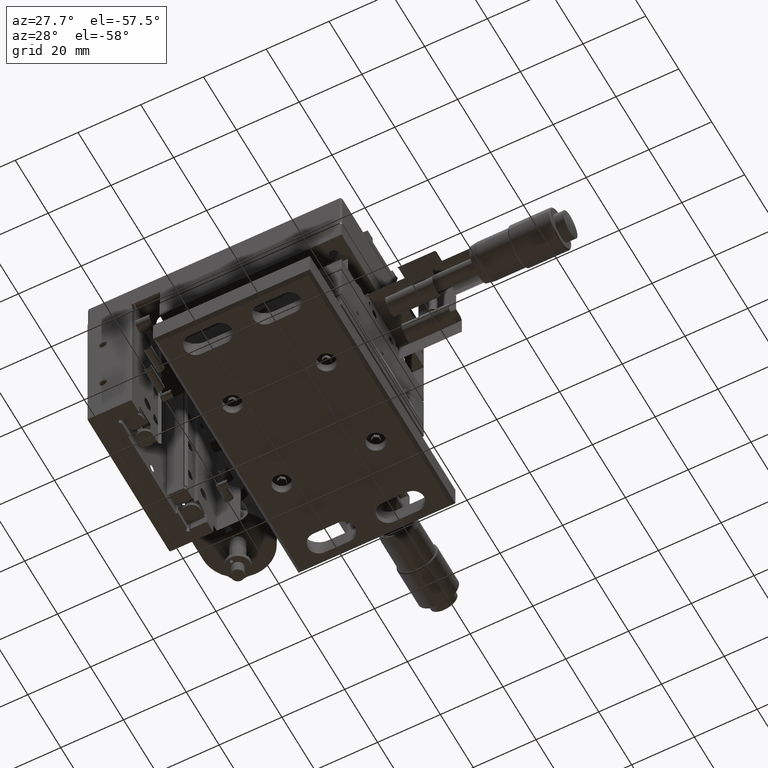
[diagram: clean part render]
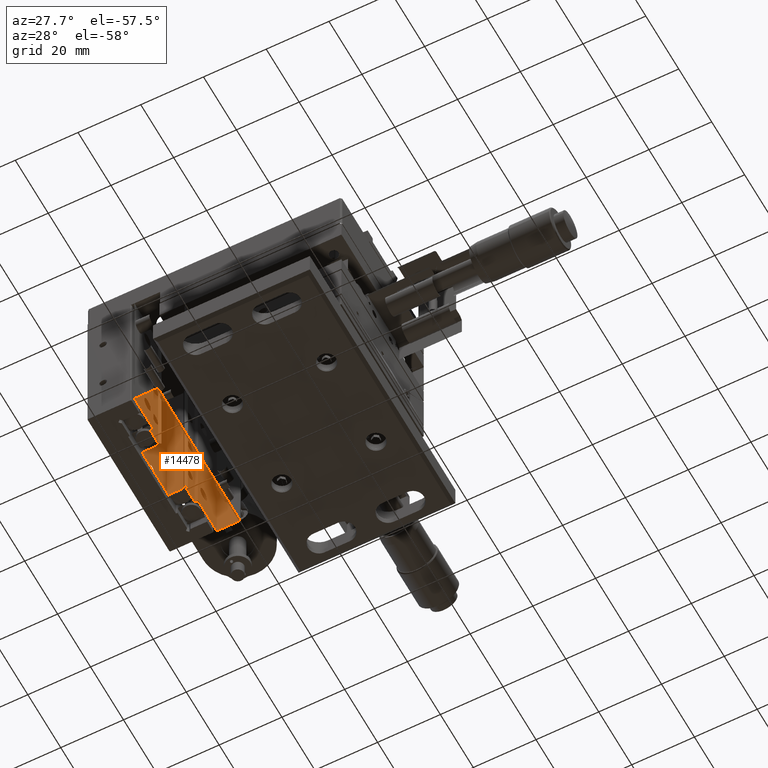
[diagram: same view with one face highlighted and labeled with its STEP entity id]
A machine part, auxiliary view. The second image highlights one B-rep face of the part: STEP entity #14478.
In plain terms, the highlighted face is a freeform B-spline surface patch.
Its self-contained STEP definition (entity closure, byte-faithful):
#239 = CARTESIAN_POINT ( 'NONE',  ( -30.58076767884060132, 11.00071742813409870, -14.42187213818439950 ) ) ;
#1154 = VERTEX_POINT ( 'NONE', #4016 ) ;
#1414 = CARTESIAN_POINT ( 'NONE',  ( -30.58076767884060132, 11.00071742813409870, -14.42187213818439950 ) ) ;
#1531 = CARTESIAN_POINT ( 'NONE',  ( -37.08076767884060132, 22.50071742813419817, -14.42187213818439950 ) ) ;
#2157 = CARTESIAN_POINT ( 'NONE',  ( -23.08076767884060132, -27.49928257186589775, -14.42187213818439950 ) ) ;
#2547 = VERTEX_POINT ( 'NONE', #19162 ) ;
#2557 = VERTEX_POINT ( 'NONE', #36954 ) ;
#2970 = ORIENTED_EDGE ( 'NONE', *, *, #30060, .F. ) ;
#3326 = CARTESIAN_POINT ( 'NONE',  ( -31.58076767884059777, 4.793610646947599641, -14.42187213818439950 ) ) ;
#4016 = CARTESIAN_POINT ( 'NONE',  ( -23.08076767884060132, 22.50071742813419817, -14.42187213818439950 ) ) ;
#4394 = CARTESIAN_POINT ( 'NONE',  ( -31.58076767884059777, 6.207824209320699893, -14.42187213818439950 ) ) ;
#4543 = EDGE_CURVE ( 'NONE', #14170, #46273, #18756, .T. ) ;
#4626 = B_SPLINE_SURFACE_WITH_KNOTS ( 'NONE', 1, 1, ( 
 ( #12060, #22845 ),
 ( #43955, #1531 ) ),
 .UNSPECIFIED., .F., .F., .F.,
 ( 2, 2 ),
 ( 2, 2 ),
 ( 0.000000000000000000, 1.000000000000000000 ),
 ( 0.000000000000000000, 1.000000000000000000 ),
 .UNSPECIFIED. ) ;
#5077 = CARTESIAN_POINT ( 'NONE',  ( -30.58076767884060132, 22.50071742813419817, -14.42187213818439950 ) ) ;
#5199 = CARTESIAN_POINT ( 'NONE',  ( -32.28787446002709771, 5.500717428134149323, -14.42187213818439950 ) ) ;
#5206 = CARTESIAN_POINT ( 'NONE',  ( -23.08076767884060132, 22.50071742813419817, -14.42187213818439950 ) ) ;
#5553 = VERTEX_POINT ( 'NONE', #3326 ) ;
#5962 = VERTEX_POINT ( 'NONE', #4394 ) ;
#5973 = CARTESIAN_POINT ( 'NONE',  ( -30.87366089765400190, 5.500717428134149323, -14.42187213818439950 ) ) ;
#6596 = ORIENTED_EDGE ( 'NONE', *, *, #24667, .T. ) ;
#7077 = CARTESIAN_POINT ( 'NONE',  ( -37.08076767884060132, -10.49928257186590130, -14.42187213818439950 ) ) ;
#7674 = B_SPLINE_CURVE_WITH_KNOTS ( 'NONE', 1,
 ( #5077, #33879 ),
 .UNSPECIFIED., .F., .F.,
 ( 2, 2 ),
 ( 0.000000000000000000, 1.000000000000000000 ),
 .UNSPECIFIED. ) ;
#8011 = CARTESIAN_POINT ( 'NONE',  ( -31.58076767884059777, -11.20638935305240125, -14.42187213818439950 ) ) ;
#8261 = CARTESIAN_POINT ( 'NONE',  ( -31.58076767884059777, -9.792175790679310765, -14.42187213818439950 ) ) ;
#8311 = CARTESIAN_POINT ( 'NONE',  ( -30.87366089765405164, -10.49928257186590130, -14.42187213818439950 ) ) ;
#8435 = CARTESIAN_POINT ( 'NONE',  ( -37.08076767884060132, -10.49928257186590130, -14.42187213818439950 ) ) ;
#8457 = CARTESIAN_POINT ( 'NONE',  ( -32.28787446002709771, -10.49928257186590130, -14.42187213818439950 ) ) ;
#9295 = ORIENTED_EDGE ( 'NONE', *, *, #40141, .F. ) ;
#9361 = EDGE_CURVE ( 'NONE', #23804, #21365, #38279, .T. ) ;
#10150 = B_SPLINE_CURVE_WITH_KNOTS ( 'NONE', 1,
 ( #29473, #31887 ),
 .UNSPECIFIED., .F., .F.,
 ( 2, 2 ),
 ( 0.000000000000000000, 1.000000000000000000 ),
 .UNSPECIFIED. ) ;
#10173 = EDGE_CURVE ( 'NONE', #5553, #46103, #32013, .T. ) ;
#10299 = ORIENTED_EDGE ( 'NONE', *, *, #4543, .F. ) ;
#10590 = EDGE_CURVE ( 'NONE', #15532, #5962, #14683, .T. ) ;
#11910 = EDGE_CURVE ( 'NONE', #14170, #15532, #26794, .T. ) ;
#12060 = CARTESIAN_POINT ( 'NONE',  ( -23.08076767884060132, -27.49928257186589775, -14.42187213818439950 ) ) ;
#12935 = EDGE_CURVE ( 'NONE', #37109, #23804, #28604, .T. ) ;
#13211 = B_SPLINE_CURVE_WITH_KNOTS ( 'NONE', 1,
 ( #26716, #8457 ),
 .UNSPECIFIED., .F., .F.,
 ( 2, 2 ),
 ( 0.000000000000000000, 1.000000000000000000 ),
 .UNSPECIFIED. ) ;
#14170 = VERTEX_POINT ( 'NONE', #36258 ) ;
#14222 = EDGE_CURVE ( 'NONE', #38819, #26524, #41330, .T. ) ;
#14269 = CARTESIAN_POINT ( 'NONE',  ( -30.58076767884060132, 22.50071742813419817, -14.42187213818439950 ) ) ;
#14478 = ADVANCED_FACE ( 'NONE', ( #44413 ), #4626, .T. ) ;
#14683 = B_SPLINE_CURVE_WITH_KNOTS ( 'NONE', 1,
 ( #23137, #44238 ),
 .UNSPECIFIED., .F., .F.,
 ( 2, 2 ),
 ( 0.000000000000000000, 1.000000000000000000 ),
 .UNSPECIFIED. ) ;
#14687 = B_SPLINE_CURVE_WITH_KNOTS ( 'NONE', 1,
 ( #8311, #30308 ),
 .UNSPECIFIED., .F., .F.,
 ( 2, 2 ),
 ( 0.000000000000000000, 1.000000000000000000 ),
 .UNSPECIFIED. ) ;
#15532 = VERTEX_POINT ( 'NONE', #34994 ) ;
#15783 = ORIENTED_EDGE ( 'NONE', *, *, #43146, .T. ) ;
#16351 = CARTESIAN_POINT ( 'NONE',  ( -37.08076767884060132, 5.500717428134149323, -14.42187213818439950 ) ) ;
#17093 = CARTESIAN_POINT ( 'NONE',  ( -30.87366089765400190, 5.500717428134149323, -14.42187213818439950 ) ) ;
#17940 = EDGE_CURVE ( 'NONE', #2557, #39652, #14687, .T. ) ;
#18047 = CARTESIAN_POINT ( 'NONE',  ( -37.08076767884060132, -10.49928257186590130, -14.42187213818439950 ) ) ;
#18756 = B_SPLINE_CURVE_WITH_KNOTS ( 'NONE', 1,
 ( #1414, #29989 ),
 .UNSPECIFIED., .F., .F.,
 ( 2, 2 ),
 ( 0.000000000000000000, 1.000000000000000000 ),
 .UNSPECIFIED. ) ;
#19162 = CARTESIAN_POINT ( 'NONE',  ( -32.28787446002709771, 5.500717428134149323, -14.42187213818439950 ) ) ;
#19185 = ORIENTED_EDGE ( 'NONE', *, *, #33559, .T. ) ;
#19495 = CARTESIAN_POINT ( 'NONE',  ( -31.58076767884059777, 4.793610646947599641, -14.42187213818439950 ) ) ;
#21233 = CARTESIAN_POINT ( 'NONE',  ( -30.87366089765400190, 5.500717428134149323, -14.42187213818439950 ) ) ;
#21365 = VERTEX_POINT ( 'NONE', #39343 ) ;
#21429 = ORIENTED_EDGE ( 'NONE', *, *, #44808, .T. ) ;
#21456 = CARTESIAN_POINT ( 'NONE',  ( -31.58076767884059777, -15.99928257186589775, -14.42187213818439950 ) ) ;
#21463 = CARTESIAN_POINT ( 'NONE',  ( -31.58076767884059777, 6.207824209320699893, -14.42187213818439950 ) ) ;
#21887 = ORIENTED_EDGE ( 'NONE', *, *, #32329, .F. ) ;
#22196 = CARTESIAN_POINT ( 'NONE',  ( -31.58076767884059777, -15.99928257186589775, -14.42187213818439950 ) ) ;
#22845 = CARTESIAN_POINT ( 'NONE',  ( -37.08076767884060132, -27.49928257186589775, -14.42187213818439950 ) ) ;
#22948 = CARTESIAN_POINT ( 'NONE',  ( -32.28787446002709771, -10.49928257186590130, -14.42187213818439950 ) ) ;
#23137 = CARTESIAN_POINT ( 'NONE',  ( -31.58076767884059777, 11.00071742813412001, -14.42187213818439950 ) ) ;
#23239 = B_SPLINE_CURVE_WITH_KNOTS ( 'NONE', 1,
 ( #40195, #43949 ),
 .UNSPECIFIED., .F., .F.,
 ( 2, 2 ),
 ( 0.000000000000000000, 1.000000000000000000 ),
 .UNSPECIFIED. ) ;
#23322 = CARTESIAN_POINT ( 'NONE',  ( -23.08076767884060132, -27.49928257186589775, -14.42187213818439950 ) ) ;
#23804 = VERTEX_POINT ( 'NONE', #7077 ) ;
#23828 = CARTESIAN_POINT ( 'NONE',  ( -30.58076767884060132, -27.49928257186589775, -14.42187213818439950 ) ) ;
#23854 = ORIENTED_EDGE ( 'NONE', *, *, #31014, .F. ) ;
#24667 = EDGE_CURVE ( 'NONE', #38110, #29205, #10150, .T. ) ;
#25476 = EDGE_LOOP ( 'NONE', ( #31559, #35547, #40819, #9295, #32286, #2970, #6596, #21429, #15783, #21887, #10299, #27030, #26273, #23854, #32670, #38947, #19185, #44233 ) ) ;
#26230 = CARTESIAN_POINT ( 'NONE',  ( -31.58076767884059777, -11.20638935305240125, -14.42187213818439950 ) ) ;
#26273 = ORIENTED_EDGE ( 'NONE', *, *, #10590, .T. ) ;
#26524 = VERTEX_POINT ( 'NONE', #31386 ) ;
#26716 = CARTESIAN_POINT ( 'NONE',  ( -31.58076767884059777, -9.792175790679310765, -14.42187213818439950 ) ) ;
#26794 = B_SPLINE_CURVE_WITH_KNOTS ( 'NONE', 1,
 ( #239, #31853 ),
 .UNSPECIFIED., .F., .F.,
 ( 2, 2 ),
 ( 0.000000000000000000, 1.000000000000000000 ),
 .UNSPECIFIED. ) ;
#26873 = CARTESIAN_POINT ( 'NONE',  ( -30.58076767884060132, -27.49928257186589775, -14.42187213818439950 ) ) ;
#27030 = ORIENTED_EDGE ( 'NONE', *, *, #11910, .T. ) ;
#28604 = B_SPLINE_CURVE_WITH_KNOTS ( 'NONE', 1,
 ( #29741, #8435 ),
 .UNSPECIFIED., .F., .F.,
 ( 2, 2 ),
 ( 0.000000000000000000, 1.000000000000000000 ),
 .UNSPECIFIED. ) ;
#29205 = VERTEX_POINT ( 'NONE', #26873 ) ;
#29473 = CARTESIAN_POINT ( 'NONE',  ( -30.58076767884060132, -15.99928257186589775, -14.42187213818439950 ) ) ;
#29714 = B_SPLINE_CURVE_WITH_KNOTS ( 'NONE', 1,
 ( #2157, #5206 ),
 .UNSPECIFIED., .F., .F.,
 ( 2, 2 ),
 ( 0.000000000000000000, 1.000000000000000000 ),
 .UNSPECIFIED. ) ;
#29741 = CARTESIAN_POINT ( 'NONE',  ( -37.08076767884060132, 5.500717428134149323, -14.42187213818439950 ) ) ;
#29989 = CARTESIAN_POINT ( 'NONE',  ( -30.58076767884060132, 22.50071742813419817, -14.42187213818439950 ) ) ;
#30060 = EDGE_CURVE ( 'NONE', #38110, #26524, #32986, .T. ) ;
#30300 = VERTEX_POINT ( 'NONE', #23322 ) ;
#30308 = CARTESIAN_POINT ( 'NONE',  ( -31.58076767884059777, -9.792175790679310765, -14.42187213818439950 ) ) ;
#31014 = EDGE_CURVE ( 'NONE', #46103, #5962, #44127, .T. ) ;
#31386 = CARTESIAN_POINT ( 'NONE',  ( -31.58076767884059777, -15.99928257186589775, -14.42187213818439950 ) ) ;
#31559 = ORIENTED_EDGE ( 'NONE', *, *, #9361, .T. ) ;
#31818 = B_SPLINE_CURVE_WITH_KNOTS ( 'NONE', 1,
 ( #23828, #42345 ),
 .UNSPECIFIED., .F., .F.,
 ( 2, 2 ),
 ( 0.000000000000000000, 1.000000000000000000 ),
 .UNSPECIFIED. ) ;
#31853 = CARTESIAN_POINT ( 'NONE',  ( -31.58076767884059777, 11.00071742813412001, -14.42187213818439950 ) ) ;
#31887 = CARTESIAN_POINT ( 'NONE',  ( -30.58076767884060132, -27.49928257186589775, -14.42187213818439950 ) ) ;
#32013 = B_SPLINE_CURVE_WITH_KNOTS ( 'NONE', 1,
 ( #45573, #5973 ),
 .UNSPECIFIED., .F., .F.,
 ( 2, 2 ),
 ( -1.000000000000000000, 0.000000000000000000 ),
 .UNSPECIFIED. ) ;
#32286 = ORIENTED_EDGE ( 'NONE', *, *, #14222, .T. ) ;
#32329 = EDGE_CURVE ( 'NONE', #46273, #1154, #7674, .T. ) ;
#32670 = ORIENTED_EDGE ( 'NONE', *, *, #10173, .F. ) ;
#32986 = B_SPLINE_CURVE_WITH_KNOTS ( 'NONE', 1,
 ( #35519, #21456 ),
 .UNSPECIFIED., .F., .F.,
 ( 2, 2 ),
 ( 0.000000000000000000, 1.000000000000000000 ),
 .UNSPECIFIED. ) ;
#33437 = CARTESIAN_POINT ( 'NONE',  ( -31.58076767884059777, -11.20638935305240125, -14.42187213818439950 ) ) ;
#33559 = EDGE_CURVE ( 'NONE', #2547, #37109, #23239, .T. ) ;
#33879 = CARTESIAN_POINT ( 'NONE',  ( -23.08076767884060132, 22.50071742813419817, -14.42187213818439950 ) ) ;
#33946 = CARTESIAN_POINT ( 'NONE',  ( -30.87366089765405164, -10.49928257186590130, -14.42187213818439950 ) ) ;
#34994 = CARTESIAN_POINT ( 'NONE',  ( -31.58076767884059777, 11.00071742813412001, -14.42187213818439950 ) ) ;
#35519 = CARTESIAN_POINT ( 'NONE',  ( -30.58076767884060132, -15.99928257186589775, -14.42187213818439950 ) ) ;
#35547 = ORIENTED_EDGE ( 'NONE', *, *, #36040, .F. ) ;
#36040 = EDGE_CURVE ( 'NONE', #39652, #21365, #13211, .T. ) ;
#36258 = CARTESIAN_POINT ( 'NONE',  ( -30.58076767884060132, 11.00071742813409870, -14.42187213818439950 ) ) ;
#36954 = CARTESIAN_POINT ( 'NONE',  ( -30.87366089765405164, -10.49928257186590130, -14.42187213818439950 ) ) ;
#37109 = VERTEX_POINT ( 'NONE', #16351 ) ;
#38110 = VERTEX_POINT ( 'NONE', #45258 ) ;
#38279 = B_SPLINE_CURVE_WITH_KNOTS ( 'NONE', 1,
 ( #18047, #22948 ),
 .UNSPECIFIED., .F., .F.,
 ( 2, 2 ),
 ( 0.000000000000000000, 1.000000000000000000 ),
 .UNSPECIFIED. ) ;
#38542 = B_SPLINE_CURVE_WITH_KNOTS ( 'NONE', 1,
 ( #26230, #33946 ),
 .UNSPECIFIED., .F., .F.,
 ( 2, 2 ),
 ( 0.000000000000000000, 1.000000000000000000 ),
 .UNSPECIFIED. ) ;
#38819 = VERTEX_POINT ( 'NONE', #8011 ) ;
#38947 = ORIENTED_EDGE ( 'NONE', *, *, #39757, .F. ) ;
#39343 = CARTESIAN_POINT ( 'NONE',  ( -32.28787446002709771, -10.49928257186590130, -14.42187213818439950 ) ) ;
#39652 = VERTEX_POINT ( 'NONE', #8261 ) ;
#39757 = EDGE_CURVE ( 'NONE', #2547, #5553, #41394, .T. ) ;
#40141 = EDGE_CURVE ( 'NONE', #38819, #2557, #38542, .T. ) ;
#40195 = CARTESIAN_POINT ( 'NONE',  ( -32.28787446002709771, 5.500717428134149323, -14.42187213818439950 ) ) ;
#40819 = ORIENTED_EDGE ( 'NONE', *, *, #17940, .F. ) ;
#41330 = B_SPLINE_CURVE_WITH_KNOTS ( 'NONE', 1,
 ( #33437, #22196 ),
 .UNSPECIFIED., .F., .F.,
 ( 2, 2 ),
 ( 0.000000000000000000, 1.000000000000000000 ),
 .UNSPECIFIED. ) ;
#41394 = B_SPLINE_CURVE_WITH_KNOTS ( 'NONE', 1,
 ( #5199, #19495 ),
 .UNSPECIFIED., .F., .F.,
 ( 2, 2 ),
 ( -1.000000000000000000, 0.000000000000000000 ),
 .UNSPECIFIED. ) ;
#42345 = CARTESIAN_POINT ( 'NONE',  ( -23.08076767884060132, -27.49928257186589775, -14.42187213818439950 ) ) ;
#43146 = EDGE_CURVE ( 'NONE', #30300, #1154, #29714, .T. ) ;
#43949 = CARTESIAN_POINT ( 'NONE',  ( -37.08076767884060132, 5.500717428134149323, -14.42187213818439950 ) ) ;
#43955 = CARTESIAN_POINT ( 'NONE',  ( -23.08076767884060132, 22.50071742813419817, -14.42187213818439950 ) ) ;
#44127 = B_SPLINE_CURVE_WITH_KNOTS ( 'NONE', 1,
 ( #21233, #21463 ),
 .UNSPECIFIED., .F., .F.,
 ( 2, 2 ),
 ( -1.000000000000000000, 0.000000000000000000 ),
 .UNSPECIFIED. ) ;
#44233 = ORIENTED_EDGE ( 'NONE', *, *, #12935, .T. ) ;
#44238 = CARTESIAN_POINT ( 'NONE',  ( -31.58076767884059777, 6.207824209320699893, -14.42187213818439950 ) ) ;
#44413 = FACE_OUTER_BOUND ( 'NONE', #25476, .T. ) ;
#44808 = EDGE_CURVE ( 'NONE', #29205, #30300, #31818, .T. ) ;
#45258 = CARTESIAN_POINT ( 'NONE',  ( -30.58076767884060132, -15.99928257186589775, -14.42187213818439950 ) ) ;
#45573 = CARTESIAN_POINT ( 'NONE',  ( -31.58076767884059777, 4.793610646947599641, -14.42187213818439950 ) ) ;
#46103 = VERTEX_POINT ( 'NONE', #17093 ) ;
#46273 = VERTEX_POINT ( 'NONE', #14269 ) ;